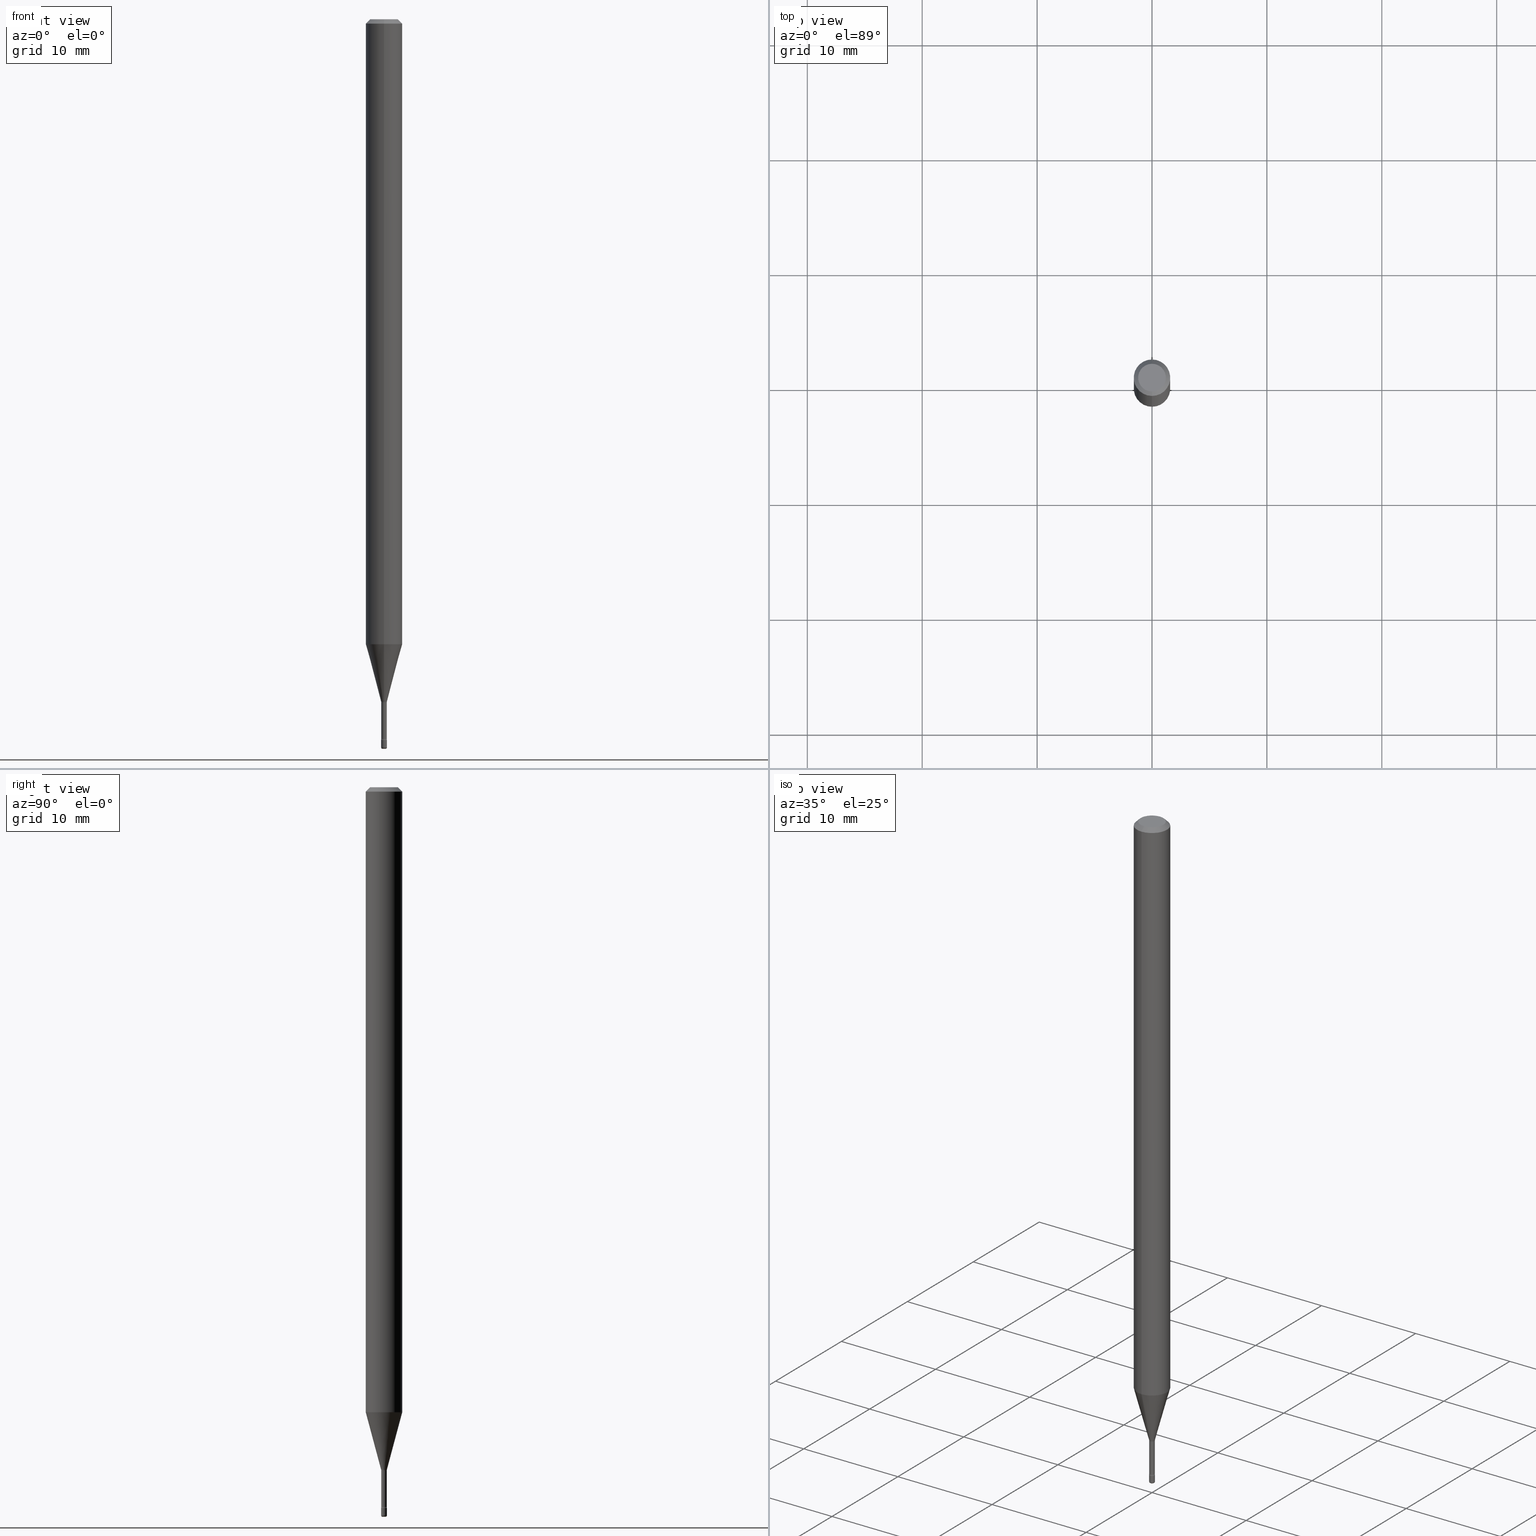
[diagram: canonical four-view strip — front | top / right | iso, engineering-drawing reading convention]
A machine part, canonical four-view strip (front | top / right | iso — engineering-drawing reading convention). The complete STEP part file that produces these views, byte-faithful:
ISO-10303-21;
HEADER;
FILE_DESCRIPTION (( 'STEP AP203' ),
    '1' );
FILE_NAME ('08786.STEP',
    '2024-03-06T20:02:27',
    ( '' ),
    ( '' ),
    'SwSTEP 2.0',
    'SolidWorks 2023',
    '' );
FILE_SCHEMA (( 'CONFIG_CONTROL_DESIGN' ));
ENDSEC;

DATA;
#1 = AXIS2_PLACEMENT_3D ( 'NONE', #392, #439, #50 ) ;
#2 = AXIS2_PLACEMENT_3D ( 'NONE', #240, #27, #195 ) ;
#3 = APPROVAL_PERSON_ORGANIZATION ( #417, #233, #36 ) ;
#4 = DIRECTION ( 'NONE',  ( -1.807323732225328562E-15, -0.2588190451025179639, 0.9659258262890690894 ) ) ;
#5 = EDGE_CURVE ( 'NONE', #423, #71, #418, .T. ) ;
#6 = FACE_OUTER_BOUND ( 'NONE', #510, .T. ) ;
#7 = APPLICATION_PROTOCOL_DEFINITION ( 'international standard', 'config_control_design', 1994, #302 ) ;
#8 = CARTESIAN_POINT ( 'NONE',  ( 0.01000000000000002102, -8.781075567190510050E-15, -2.495000000000000107 ) ) ;
#9 = CIRCLE ( 'NONE', #181, 0.01000000000000000021 ) ;
#10 = AXIS2_PLACEMENT_3D ( 'NONE', #406, #100, #62 ) ;
#11 = EDGE_CURVE ( 'NONE', #360, #296, #400, .T. ) ;
#12 = CARTESIAN_POINT ( 'NONE',  ( 3.668257017501394101E-31, -5.237144951825841500E-17, -0.01500000000000002720 ) ) ;
#13 = CARTESIAN_POINT ( 'NONE',  ( 0.01000000000000000021, -8.693788533719433294E-15, -2.470000000000000195 ) ) ;
#14 = EDGE_CURVE ( 'NONE', #337, #458, #374, .T. ) ;
#15 = DIRECTION ( 'NONE',  ( -2.445504678334258612E-29, 3.491429967883887349E-15, 1.000000000000000000 ) ) ;
#16 = ORIENTED_EDGE ( 'NONE', *, *, #14, .F. ) ;
#17 = CARTESIAN_POINT ( 'NONE',  ( 7.042269065260616487E-17, 0.009911112605655818600, -2.338092501787273125 ) ) ;
#18 = LENGTH_MEASURE_WITH_UNIT ( LENGTH_MEASURE( 0.02539999999999999897 ), #188 );
#19 = VECTOR ( 'NONE', #252, 39.37007874015748143 ) ;
#20 = CARTESIAN_POINT ( 'NONE',  ( 6.040396555485618656E-29, -8.623832020673202836E-15, -2.470000000000000195 ) ) ;
#21 = AXIS2_PLACEMENT_3D ( 'NONE', #548, #327, #366 ) ;
#22 = EDGE_CURVE ( 'NONE', #348, #553, #300, .T. ) ;
#23 = PLANE ( 'NONE',  #2 ) ;
#24 = CARTESIAN_POINT ( 'NONE',  ( 6.982962677692306673E-17, 0.009999999999991375163, -2.470000000000000195 ) ) ;
#25 = PERSON_AND_ORGANIZATION_ROLE ( 'creator' ) ;
#26 = MANIFOLD_SOLID_BREP ( 'Body-Move/Copy2[1]', #312 ) ;
#27 = DIRECTION ( 'NONE',  ( -2.438088387897960049E-29, 3.491481338843145188E-15, 1.000000000000000000 ) ) ;
#28 = CARTESIAN_POINT ( 'NONE',  ( -6.563984917019362207E-17, -0.009400000000008176121, -2.341974787463811047 ) ) ;
#29 = DATE_TIME_ROLE ( 'classification_date' ) ;
#30 = ORIENTED_EDGE ( 'NONE', *, *, #22, .T. ) ;
#31 = FACE_OUTER_BOUND ( 'NONE', #343, .T. ) ;
#32 = APPROVAL_PERSON_ORGANIZATION ( #179, #536, #56 ) ;
#33 = VERTEX_POINT ( 'NONE', #28 ) ;
#34 = DIRECTION ( 'NONE',  ( -1.000000000000000000, 6.982962677686265922E-15, -4.876176775795935793E-29 ) ) ;
#35 = ORIENTED_EDGE ( 'NONE', *, *, #171, .T. ) ;
#36 = APPROVAL_ROLE ( '' ) ;
#37 = ADVANCED_BREP_SHAPE_REPRESENTATION ( '08786', ( #26, #201, #199 ), #445 ) ;
#38 = EDGE_LOOP ( 'NONE', ( #81, #571, #35, #371 ) ) ;
#39 = CARTESIAN_POINT ( 'NONE',  ( 6.040307951277287977E-29, -8.623958906942569995E-15, -2.470000000000000195 ) ) ;
#40 = FACE_OUTER_BOUND ( 'NONE', #207, .T. ) ;
#41 = EDGE_LOOP ( 'NONE', ( #30, #542, #48, #381 ) ) ;
#42 = PLANE ( 'NONE',  #515 ) ;
#43 = AXIS2_PLACEMENT_3D ( 'NONE', #160, #335, #116 ) ;
#44 = ORIENTED_EDGE ( 'NONE', *, *, #476, .T. ) ;
#45 = LOCAL_TIME ( 15, 2, 27.00000000000000000, #120 ) ;
#46 = EDGE_CURVE ( 'NONE', #423, #296, #564, .T. ) ;
#47 = CYLINDRICAL_SURFACE ( 'NONE', #502, 0.009400000000000007308 ) ;
#48 = ORIENTED_EDGE ( 'NONE', *, *, #481, .F. ) ;
#49 = CARTESIAN_POINT ( 'NONE',  ( 6.679101716150976795E-17, 0.009399999999991824617, -2.341974787463811047 ) ) ;
#50 = DIRECTION ( 'NONE',  ( -6.982962677686265133E-15, -1.000000000000000000, 3.491429967883887349E-15 ) ) ;
#51 = CONICAL_SURFACE ( 'NONE', #494, 0.06250000000000000000, 0.7853981633974480570 ) ;
#52 = CIRCLE ( 'NONE', #518, 0.009399999999999998634 ) ;
#53 = CC_DESIGN_APPROVAL ( #260, ( #467 ) ) ;
#54 = DIRECTION ( 'NONE',  ( -2.445504678334258331E-29, 3.491429967883887349E-15, 1.000000000000000000 ) ) ;
#55 = DIRECTION ( 'NONE',  ( -6.982962677686265922E-15, -1.000000000000000000, 0.000000000000000000 ) ) ;
#56 = APPROVAL_ROLE ( '' ) ;
#57 = DIRECTION ( 'NONE',  ( -2.445504678334258331E-29, 3.491429967883887349E-15, 1.000000000000000000 ) ) ;
#58 = ADVANCED_FACE ( 'NONE', ( #31 ), #221, .T. ) ;
#59 = VECTOR ( 'NONE', #379, 39.37007874015748143 ) ;
#60 = CARTESIAN_POINT ( 'NONE',  ( -0.005000000000000000971, -8.666683938578750258E-15, -2.500000000000000000 ) ) ;
#61 = EDGE_CURVE ( 'NONE', #186, #348, #165, .T. ) ;
#62 = DIRECTION ( 'NONE',  ( -6.982962677686265922E-15, -1.000000000000000000, 0.000000000000000000 ) ) ;
#63 = DIRECTION ( 'NONE',  ( 1.000000000000000000, 0.000000000000000000, 0.000000000000000000 ) ) ;
#64 = CARTESIAN_POINT ( 'NONE',  ( 4.440892098501153712E-16, 0.06249999999999995837, -0.01500000000000024578 ) ) ;
#65 = CC_DESIGN_DATE_AND_TIME_ASSIGNMENT ( #464, #250, ( #399 ) ) ;
#66 = AXIS2_PLACEMENT_3D ( 'NONE', #183, #449, #444 ) ;
#67 = DIRECTION ( 'NONE',  ( -6.982962677686265922E-15, -1.000000000000000000, 3.491429967883887349E-15 ) ) ;
#68 = FACE_OUTER_BOUND ( 'NONE', #560, .T. ) ;
#69 = CARTESIAN_POINT ( 'NONE',  ( -4.364351673553916201E-16, -0.06250000000000000000, 6.962877718839889979E-16 ) ) ;
#70 = DIMENSIONAL_EXPONENTS ( 1.000000000000000000, 0.000000000000000000, 0.000000000000000000, 0.000000000000000000, 0.000000000000000000, 0.000000000000000000, 0.000000000000000000 ) ;
#71 = VERTEX_POINT ( 'NONE', #463 ) ;
#72 = CARTESIAN_POINT ( 'NONE',  ( -4.287811248607203282E-16, -0.06250000000000005551, -0.01499999999999981036 ) ) ;
#73 = DIRECTION ( 'NONE',  ( 7.105427357601001859E-15, 1.000000000000000000, 0.000000000000000000 ) ) ;
#74 = ORIENTED_EDGE ( 'NONE', *, *, #453, .T. ) ;
#75 = CC_DESIGN_DATE_AND_TIME_ASSIGNMENT ( #456, #29, ( #80 ) ) ;
#76 = DIRECTION ( 'NONE',  ( 1.000000000000000000, -6.982962677686330608E-15, 0.000000000000000000 ) ) ;
#77 = AXIS2_PLACEMENT_3D ( 'NONE', #554, #157, #196 ) ;
#78 = ORIENTED_EDGE ( 'NONE', *, *, #248, .T. ) ;
#79 = LOCAL_TIME ( 15, 2, 27.00000000000000000, #154 ) ;
#80 = SECURITY_CLASSIFICATION ( '', '', #411 ) ;
#81 = ORIENTED_EDGE ( 'NONE', *, *, #446, .F. ) ;
#82 = CARTESIAN_POINT ( 'NONE',  ( 5.717816151499027115E-29, -8.163286228424696892E-15, -2.338092501787273125 ) ) ;
#83 = VERTEX_POINT ( 'NONE', #341 ) ;
#84 = ORIENTED_EDGE ( 'NONE', *, *, #163, .F. ) ;
#85 = ORIENTED_EDGE ( 'NONE', *, *, #363, .T. ) ;
#86 = EDGE_CURVE ( 'NONE', #317, #556, #9, .T. ) ;
#87 = ORIENTED_EDGE ( 'NONE', *, *, #352, .T. ) ;
#88 = FACE_OUTER_BOUND ( 'NONE', #126, .T. ) ;
#89 = ORIENTED_EDGE ( 'NONE', *, *, #248, .F. ) ;
#90 = DIRECTION ( 'NONE',  ( -2.445504678334258331E-29, 3.491429967883887349E-15, 1.000000000000000000 ) ) ;
#91 = CALENDAR_DATE ( 2024, 6, 3 ) ;
#92 = CARTESIAN_POINT ( 'NONE',  ( 4.364351673553919652E-16, 0.06249999999999995143, -0.01500000000000024578 ) ) ;
#93 = CIRCLE ( 'NONE', #228, 0.005000000000000000971 ) ;
#94 = DIRECTION ( 'NONE',  ( -6.982962677686265922E-15, -1.000000000000000000, 3.483106191921935554E-15 ) ) ;
#95 = FACE_OUTER_BOUND ( 'NONE', #517, .T. ) ;
#96 = EDGE_CURVE ( 'NONE', #83, #33, #516, .T. ) ;
#97 = FACE_OUTER_BOUND ( 'NONE', #143, .T. ) ;
#98 = ORIENTED_EDGE ( 'NONE', *, *, #136, .F. ) ;
#99 = AXIS2_PLACEMENT_3D ( 'NONE', #396, #442, #138 ) ;
#100 = DIRECTION ( 'NONE',  ( -2.445504678334258331E-29, 3.491429967883887349E-15, 1.000000000000000000 ) ) ;
#101 = CARTESIAN_POINT ( 'NONE',  ( 2.572559502513606694E-16, 0.009911112605655818600, -2.338092501787273125 ) ) ;
#102 = ADVANCED_FACE ( 'NONE', ( #40 ), #519, .F. ) ;
#103 = DIRECTION ( 'NONE',  ( -2.445468806185136597E-29, 3.491481338843145583E-15, 1.000000000000000000 ) ) ;
#104 = DIRECTION ( 'NONE',  ( -2.445504678334258331E-29, 3.491429967883887349E-15, 1.000000000000000000 ) ) ;
#105 = FACE_OUTER_BOUND ( 'NONE', #493, .T. ) ;
#106 = ORIENTED_EDGE ( 'NONE', *, *, #488, .T. ) ;
#107 = COORDINATED_UNIVERSAL_TIME_OFFSET ( 5, 0, .BEHIND. ) ;
#108 = DIRECTION ( 'NONE',  ( -2.445468806185136597E-29, 3.491481338843145583E-15, 1.000000000000000000 ) ) ;
#109 = DIRECTION ( 'NONE',  ( -6.982962677686265922E-15, -1.000000000000000000, 0.000000000000000000 ) ) ;
#110 = CALENDAR_DATE ( 2024, 6, 3 ) ;
#111 = ADVANCED_FACE ( 'NONE', ( #125 ), #42, .F. ) ;
#112 = ORIENTED_EDGE ( 'NONE', *, *, #86, .F. ) ;
#113 = DIRECTION ( 'NONE',  ( -2.445504678334258331E-29, 3.491429967883887349E-15, 1.000000000000000000 ) ) ;
#114 = DIRECTION ( 'NONE',  ( -6.982962677686266711E-15, -1.000000000000000000, 3.491481338843145583E-15 ) ) ;
#115 = ORIENTED_EDGE ( 'NONE', *, *, #264, .F. ) ;
#116 = DIRECTION ( 'NONE',  ( -6.982962677686265922E-15, -1.000000000000000000, 3.491429967883884588E-15 ) ) ;
#117 = CIRCLE ( 'NONE', #443, 0.005000000000000042605 ) ;
#118 = CARTESIAN_POINT ( 'NONE',  ( -1.703842893354876449E-16, -0.02440000000000817904, -2.341974787463811047 ) ) ;
#119 = CIRCLE ( 'NONE', #21, 0.01000000000000000021 ) ;
#120 = COORDINATED_UNIVERSAL_TIME_OFFSET ( 5, 0, .BEHIND. ) ;
#121 = ORIENTED_EDGE ( 'NONE', *, *, #405, .T. ) ;
#122 = EDGE_CURVE ( 'NONE', #375, #337, #325, .T. ) ;
#123 = EDGE_LOOP ( 'NONE', ( #508, #299, #217, #87 ) ) ;
#124 = ORIENTED_EDGE ( 'NONE', *, *, #218, .T. ) ;
#125 = FACE_OUTER_BOUND ( 'NONE', #521, .T. ) ;
#126 = EDGE_LOOP ( 'NONE', ( #419, #78, #173, #367 ) ) ;
#127 = DIRECTION ( 'NONE',  ( -2.445504678334258331E-29, 3.491429967883887349E-15, 1.000000000000000000 ) ) ;
#128 = CIRCLE ( 'NONE', #176, 0.005000000000000000971 ) ;
#129 = CIRCLE ( 'NONE', #339, 0.06250000000000000000 ) ;
#130 = DIRECTION ( 'NONE',  ( -6.982962677686265922E-15, -1.000000000000000000, 3.491429967883886954E-15 ) ) ;
#131 = ADVANCED_FACE ( 'NONE', ( #6 ), #549, .T. ) ;
#132 = DIRECTION ( 'NONE',  ( 1.000000000000000000, -6.982962677686330608E-15, 0.000000000000000000 ) ) ;
#133 = LINE ( 'NONE', #308, #486 ) ;
#134 =( CONVERSION_BASED_UNIT ( 'INCH', #18 ) LENGTH_UNIT ( ) NAMED_UNIT ( #70 ) );
#135 = AXIS2_PLACEMENT_3D ( 'NONE', #277, #200, #34 ) ;
#136 = EDGE_CURVE ( 'NONE', #186, #293, #128, .T. ) ;
#137 = CARTESIAN_POINT ( 'NONE',  ( -3.773273898774340269E-16, -0.04750000000000000749, 1.387512961567804299E-16 ) ) ;
#138 = DIRECTION ( 'NONE',  ( 1.000000000000000000, -6.982962677686302998E-15, 4.883557194083125793E-29 ) ) ;
#139 =( NAMED_UNIT ( * ) SI_UNIT ( $, .STERADIAN. ) SOLID_ANGLE_UNIT ( ) );
#140 = CARTESIAN_POINT ( 'NONE',  ( -0.01000000000000000021, -8.596548150102098292E-15, -2.470000000000000195 ) ) ;
#141 = TOROIDAL_SURFACE ( 'NONE', #166, 0.02440000000000000849, 0.01499999999999999424 ) ;
#142 = DIRECTION ( 'NONE',  ( -2.445504678334258331E-29, 3.491429967883887349E-15, 1.000000000000000000 ) ) ;
#143 = EDGE_LOOP ( 'NONE', ( #249, #523, #292, #112 ) ) ;
#144 = LINE ( 'NONE', #17, #268 ) ;
#145 = APPROVAL_DATE_TIME ( #544, #536 ) ;
#146 = CARTESIAN_POINT ( 'NONE',  ( 4.440892098500625669E-16, 0.06250000000000000000, 2.598590258985031286E-16 ) ) ;
#147 = EDGE_LOOP ( 'NONE', ( #98, #251 ) ) ;
#148 = APPROVAL_STATUS ( 'not_yet_approved' ) ;
#149 = AXIS2_PLACEMENT_3D ( 'NONE', #241, #413, #73 ) ;
#150 = AXIS2_PLACEMENT_3D ( 'NONE', #234, #57, #495 ) ;
#151 = DIRECTION ( 'NONE',  ( 1.000000000000000000, -6.982962677686265922E-15, 4.876176775795935793E-29 ) ) ;
#152 = CC_DESIGN_PERSON_AND_ORGANIZATION_ASSIGNMENT ( #193, #238, ( #467 ) ) ;
#153 = ORIENTED_EDGE ( 'NONE', *, *, #481, .T. ) ;
#154 = COORDINATED_UNIVERSAL_TIME_OFFSET ( 5, 0, .BEHIND. ) ;
#155 = VERTEX_POINT ( 'NONE', #49 ) ;
#156 = FACE_OUTER_BOUND ( 'NONE', #550, .T. ) ;
#157 = DIRECTION ( 'NONE',  ( -2.445504678334258331E-29, 3.491429967883887349E-15, 1.000000000000000000 ) ) ;
#158 = ADVANCED_FACE ( 'NONE', ( #567 ), #305, .F. ) ;
#159 = EDGE_LOOP ( 'NONE', ( #74, #162, #472, #16 ) ) ;
#160 = CARTESIAN_POINT ( 'NONE',  ( -1.169113584055446105E-44, 1.669184350826100908E-30, 4.780733988912460139E-16 ) ) ;
#161 = CARTESIAN_POINT ( 'NONE',  ( 6.040307951277287977E-29, -8.623958906942569995E-15, -2.470000000000000195 ) ) ;
#162 = ORIENTED_EDGE ( 'NONE', *, *, #441, .T. ) ;
#163 = EDGE_CURVE ( 'NONE', #293, #553, #117, .T. ) ;
#164 = DIRECTION ( 'NONE',  ( -2.445468806185136597E-29, 3.491481338843145583E-15, 1.000000000000000000 ) ) ;
#165 = CIRCLE ( 'NONE', #478, 0.005000000000000042605 ) ;
#166 = AXIS2_PLACEMENT_3D ( 'NONE', #470, #104, #67 ) ;
#167 = ORIENTED_EDGE ( 'NONE', *, *, #46, .T. ) ;
#168 = ORIENTED_EDGE ( 'NONE', *, *, #11, .T. ) ;
#169 = CARTESIAN_POINT ( 'NONE',  ( -0.005000000000000000104, -8.675718803625644077E-15, -2.495000000000000107 ) ) ;
#170 = ORIENTED_EDGE ( 'NONE', *, *, #382, .T. ) ;
#171 = EDGE_CURVE ( 'NONE', #281, #388, #345, .T. ) ;
#172 = CARTESIAN_POINT ( 'NONE',  ( 5.727226287614814942E-29, -8.176961266471039436E-15, -2.341974787463811047 ) ) ;
#173 = ORIENTED_EDGE ( 'NONE', *, *, #352, .F. ) ;
#174 = DIRECTION ( 'NONE',  ( -6.982962677686265922E-15, -1.000000000000000000, 3.491429967883887349E-15 ) ) ;
#175 = ADVANCED_FACE ( 'NONE', ( #524 ), #522, .T. ) ;
#176 = AXIS2_PLACEMENT_3D ( 'NONE', #261, #347, #132 ) ;
#177 = FACE_OUTER_BOUND ( 'NONE', #460, .T. ) ;
#178 = DIRECTION ( 'NONE',  ( -2.445504678334258331E-29, 3.491429967883887349E-15, 1.000000000000000000 ) ) ;
#179 = PERSON_AND_ORGANIZATION ( #397, #273 ) ;
#180 = EDGE_CURVE ( 'NONE', #566, #155, #390, .T. ) ;
#181 = AXIS2_PLACEMENT_3D ( 'NONE', #161, #336, #514 ) ;
#182 = AXIS2_PLACEMENT_3D ( 'NONE', #533, #315, #270 ) ;
#183 = CARTESIAN_POINT ( 'NONE',  ( 6.030125435836615082E-29, -8.609168014808090444E-15, -2.465800000000000214 ) ) ;
#184 = LINE ( 'NONE', #230, #487 ) ;
#185 = FACE_OUTER_BOUND ( 'NONE', #256, .T. ) ;
#186 = VERTEX_POINT ( 'NONE', #475 ) ;
#187 = CARTESIAN_POINT ( 'NONE',  ( 3.840629472727447874E-16, 0.04750000000000000749, -1.929345507921889422E-16 ) ) ;
#188 =( LENGTH_UNIT ( ) NAMED_UNIT ( * ) SI_UNIT ( $, .METRE. ) );
#189 = CARTESIAN_POINT ( 'NONE',  ( 3.668257017501394101E-31, -5.237144951825841500E-17, -0.01500000000000002720 ) ) ;
#190 = ADVANCED_FACE ( 'NONE', ( #429 ), #51, .T. ) ;
#191 = CARTESIAN_POINT ( 'NONE',  ( 6.892264536879008027E-17, 0.009399999999991406549, -2.465800000000000214 ) ) ;
#192 = ORIENTED_EDGE ( 'NONE', *, *, #298, .T. ) ;
#193 = PERSON_AND_ORGANIZATION ( #397, #273 ) ;
#194 = ADVANCED_FACE ( 'NONE', ( #88 ), #47, .T. ) ;
#195 = DIRECTION ( 'NONE',  ( 1.000000000000000000, -6.982962677686265922E-15, 4.876176775795935793E-29 ) ) ;
#196 = DIRECTION ( 'NONE',  ( -6.982962677686264344E-15, -1.000000000000000000, 0.000000000000000000 ) ) ;
#197 = ORIENTED_EDGE ( 'NONE', *, *, #11, .F. ) ;
#198 = AXIS2_PLACEMENT_3D ( 'NONE', #303, #297, #255 ) ;
#199 = AXIS2_PLACEMENT_3D ( 'NONE', #448, #395, #63 ) ;
#200 = DIRECTION ( 'NONE',  ( 2.438088387897960049E-29, -3.491481338843145188E-15, -1.000000000000000000 ) ) ;
#201 = MANIFOLD_SOLID_BREP ( 'Body-Move/Copy2[2]', #537 ) ;
#202 = DIRECTION ( 'NONE',  ( -2.445504678334258331E-29, 3.491429967883887349E-15, 1.000000000000000000 ) ) ;
#203 = APPROVAL_STATUS ( 'not_yet_approved' ) ;
#204 = ORIENTED_EDGE ( 'NONE', *, *, #356, .T. ) ;
#205 = DIRECTION ( 'NONE',  ( -6.982962677686265922E-15, -1.000000000000000000, 4.370956789862821150E-15 ) ) ;
#206 = DIRECTION ( 'NONE',  ( -2.445504678334258612E-29, 3.491429967883887349E-15, 1.000000000000000000 ) ) ;
#207 = EDGE_LOOP ( 'NONE', ( #197, #259 ) ) ;
#208 = DIRECTION ( 'NONE',  ( 2.445504678334258331E-29, -3.491429967883887349E-15, -1.000000000000000000 ) ) ;
#209 = APPLICATION_CONTEXT ( 'configuration controlled 3d designs of mechanical parts and assemblies' ) ;
#210 = ORIENTED_EDGE ( 'NONE', *, *, #86, .T. ) ;
#211 = ORIENTED_EDGE ( 'NONE', *, *, #14, .T. ) ;
#212 = AXIS2_PLACEMENT_3D ( 'NONE', #410, #202, #285 ) ;
#213 = CIRCLE ( 'NONE', #10, 0.009399999999999998634 ) ;
#214 = CARTESIAN_POINT ( 'NONE',  ( 3.316907271900976589E-16, 0.04750000000000000749, 5.964796231228628526E-17 ) ) ;
#215 = ORIENTED_EDGE ( 'NONE', *, *, #61, .F. ) ;
#216 = DIRECTION ( 'NONE',  ( 2.445504678334258051E-29, -3.491429967883887349E-15, -1.000000000000000000 ) ) ;
#217 = ORIENTED_EDGE ( 'NONE', *, *, #96, .T. ) ;
#218 = EDGE_CURVE ( 'NONE', #281, #286, #246, .T. ) ;
#219 = DIRECTION ( 'NONE',  ( -1.000000000000000000, 7.105427357601060234E-15, 0.000000000000000000 ) ) ;
#220 = CARTESIAN_POINT ( 'NONE',  ( -6.920892941964028521E-17, -0.009911112605672145817, -2.338092501787273125 ) ) ;
#221 = CONICAL_SURFACE ( 'NONE', #77, 0.009911112605663982209, 0.2617993877991500740 ) ;
#222 = AXIS2_PLACEMENT_3D ( 'NONE', #361, #142, #276 ) ;
#223 = APPROVAL_PERSON_ORGANIZATION ( #329, #260, #422 ) ;
#224 = DIRECTION ( 'NONE',  ( -6.982962677686265922E-15, -1.000000000000000000, 3.491429967883884588E-15 ) ) ;
#225 = ADVANCED_FACE ( 'NONE', ( #389 ), #465, .F. ) ;
#226 = CARTESIAN_POINT ( 'NONE',  ( -4.364351673553393088E-16, -0.06250000000000748013, -2.141828102118092936 ) ) ;
#227 = AXIS2_PLACEMENT_3D ( 'NONE', #394, #90, #489 ) ;
#228 = AXIS2_PLACEMENT_3D ( 'NONE', #322, #500, #76 ) ;
#229 = DIRECTION ( 'NONE',  ( -2.445504678334258612E-29, 3.491429967883887349E-15, 1.000000000000000000 ) ) ;
#230 = CARTESIAN_POINT ( 'NONE',  ( -0.01000000000000000021, 7.105427357601002007E-17, -4.918935090254906272E-31 ) ) ;
#231 = EDGE_CURVE ( 'NONE', #83, #337, #482, .T. ) ;
#232 = CARTESIAN_POINT ( 'NONE',  ( 6.101444671431915719E-29, -8.711245940413648329E-15, -2.495000000000000107 ) ) ;
#233 = APPROVAL ( #203, 'UNSPECIFIED' ) ;
#234 = CARTESIAN_POINT ( 'NONE',  ( 6.030036982291310238E-29, -8.609294685319429365E-15, -2.465800000000000214 ) ) ;
#235 = VECTOR ( 'NONE', #206, 39.37007874015748143 ) ;
#236 = VECTOR ( 'NONE', #229, 39.37007874015748143 ) ;
#237 = CARTESIAN_POINT ( 'NONE',  ( 0.01000000000000000021, -6.982962677686265724E-17, 4.876176775795935968E-31 ) ) ;
#238 = PERSON_AND_ORGANIZATION_ROLE ( 'design_supplier' ) ;
#239 = ADVANCED_FACE ( 'NONE', ( #177 ), #353, .T. ) ;
#240 = CARTESIAN_POINT ( 'NONE',  ( 6.040307951277287977E-29, -8.623958906942569995E-15, -2.470000000000000195 ) ) ;
#241 = CARTESIAN_POINT ( 'NONE',  ( 1.733724275255247796E-16, 0.02439999999999140079, -2.465800000000000214 ) ) ;
#242 = FACE_OUTER_BOUND ( 'NONE', #41, .T. ) ;
#243 = ORIENTED_EDGE ( 'NONE', *, *, #484, .T. ) ;
#244 = PERSON_AND_ORGANIZATION ( #397, #273 ) ;
#245 = ORIENTED_EDGE ( 'NONE', *, *, #61, .T. ) ;
#246 = CIRCLE ( 'NONE', #1, 0.04750000000000000749 ) ;
#247 = AXIS2_PLACEMENT_3D ( 'NONE', #376, #164, #151 ) ;
#248 = EDGE_CURVE ( 'NONE', #423, #155, #133, .T. ) ;
#249 = ORIENTED_EDGE ( 'NONE', *, *, #569, .F. ) ;
#250 = DATE_TIME_ROLE ( 'creation_date' ) ;
#251 = ORIENTED_EDGE ( 'NONE', *, *, #488, .F. ) ;
#252 = DIRECTION ( 'NONE',  ( -2.445504678334258612E-29, 3.491429967883887349E-15, 1.000000000000000000 ) ) ;
#253 = DIRECTION ( 'NONE',  ( -6.982962677686265133E-15, -1.000000000000000000, 0.000000000000000000 ) ) ;
#254 = ORIENTED_EDGE ( 'NONE', *, *, #476, .F. ) ;
#255 = DIRECTION ( 'NONE',  ( 7.105427357601000281E-15, 1.000000000000000000, 0.000000000000000000 ) ) ;
#256 = EDGE_LOOP ( 'NONE', ( #84, #106, #245, #466 ) ) ;
#257 = AXIS2_PLACEMENT_3D ( 'NONE', #558, #425, #377 ) ;
#258 = DIRECTION ( 'NONE',  ( 4.937700262164546464E-15, 0.7071067811865449082, -0.7071067811865501263 ) ) ;
#259 = ORIENTED_EDGE ( 'NONE', *, *, #298, .F. ) ;
#260 = APPROVAL ( #148, 'UNSPECIFIED' ) ;
#261 = CARTESIAN_POINT ( 'NONE',  ( 6.113672015462842613E-29, -8.728703347107864943E-15, -2.500000000000000000 ) ) ;
#262 = ADVANCED_FACE ( 'NONE', ( #185 ), #538, .T. ) ;
#263 = DIRECTION ( 'NONE',  ( -6.982962677686264344E-15, -1.000000000000000000, 0.000000000000000000 ) ) ;
#264 = EDGE_CURVE ( 'NONE', #71, #423, #314, .T. ) ;
#265 = AXIS2_PLACEMENT_3D ( 'NONE', #232, #103, #275 ) ;
#266 = DIRECTION ( 'NONE',  ( -2.445504678334258331E-29, 3.491429967883887349E-15, 1.000000000000000000 ) ) ;
#267 = AXIS2_PLACEMENT_3D ( 'NONE', #304, #178, #354 ) ;
#268 = VECTOR ( 'NONE', #403, 39.37007874015748854 ) ;
#269 = FACE_OUTER_BOUND ( 'NONE', #147, .T. ) ;
#270 = DIRECTION ( 'NONE',  ( 1.000000000000000000, -6.982962677686265922E-15, 4.876176775795935793E-29 ) ) ;
#271 = DIRECTION ( 'NONE',  ( -2.445504678334258331E-29, 3.491429967883887349E-15, 1.000000000000000000 ) ) ;
#272 = AXIS2_PLACEMENT_3D ( 'NONE', #530, #572, #130 ) ;
#273 = ORGANIZATION ( 'UNSPECIFIED', 'UNSPECIFIED', '' ) ;
#274 = EDGE_CURVE ( 'NONE', #71, #360, #438, .T. ) ;
#275 = DIRECTION ( 'NONE',  ( 1.000000000000000000, -6.982962677686302998E-15, 4.883557194083125793E-29 ) ) ;
#276 = DIRECTION ( 'NONE',  ( -6.982962677686264344E-15, -1.000000000000000000, 0.000000000000000000 ) ) ;
#277 = CARTESIAN_POINT ( 'NONE',  ( 3.491481338849247767E-17, 0.004999999999991271843, -2.500000000000000000 ) ) ;
#278 = ADVANCED_FACE ( 'NONE', ( #97 ), #359, .T. ) ;
#279 = PERSON_AND_ORGANIZATION_ROLE ( 'creator' ) ;
#280 = AXIS2_PLACEMENT_3D ( 'NONE', #172, #127, #174 ) ;
#281 = VERTEX_POINT ( 'NONE', #187 ) ;
#282 = CALENDAR_DATE ( 2024, 6, 3 ) ;
#283 = ORIENTED_EDGE ( 'NONE', *, *, #171, .F. ) ;
#284 = LINE ( 'NONE', #146, #19 ) ;
#285 = DIRECTION ( 'NONE',  ( -6.982962677686265922E-15, -1.000000000000000000, 0.000000000000000000 ) ) ;
#286 = VERTEX_POINT ( 'NONE', #137 ) ;
#287 = DIRECTION ( 'NONE',  ( -6.982962677686264344E-15, -1.000000000000000000, 0.000000000000000000 ) ) ;
#288 = DIRECTION ( 'NONE',  ( 1.000000000000000000, -6.982962677686078962E-15, 0.000000000000000000 ) ) ;
#289 = ORIENTED_EDGE ( 'NONE', *, *, #453, .F. ) ;
#290 = VECTOR ( 'NONE', #454, 39.37007874015748143 ) ;
#291 = DIRECTION ( 'NONE',  ( -2.445504678334258331E-29, 3.491429967883887349E-15, 1.000000000000000000 ) ) ;
#292 = ORIENTED_EDGE ( 'NONE', *, *, #525, .T. ) ;
#293 = VERTEX_POINT ( 'NONE', #60 ) ;
#294 = ADVANCED_FACE ( 'NONE', ( #491 ), #372, .F. ) ;
#295 = ORIENTED_EDGE ( 'NONE', *, *, #122, .T. ) ;
#296 = VERTEX_POINT ( 'NONE', #539 ) ;
#297 = DIRECTION ( 'NONE',  ( 1.000000000000000000, -7.105427357601001070E-15, 4.926314879429274098E-29 ) ) ;
#298 = EDGE_CURVE ( 'NONE', #296, #360, #391, .T. ) ;
#299 = ORIENTED_EDGE ( 'NONE', *, *, #382, .F. ) ;
#300 = CIRCLE ( 'NONE', #257, 0.01000000000000000021 ) ;
#301 = AXIS2_PLACEMENT_3D ( 'NONE', #424, #208, #331 ) ;
#302 = APPLICATION_CONTEXT ( 'configuration controlled 3d designs of mechanical parts and assemblies' ) ;
#303 = CARTESIAN_POINT ( 'NONE',  ( 1.733724275255216981E-16, 0.02439999999999182406, -2.341974787463811047 ) ) ;
#304 = CARTESIAN_POINT ( 'NONE',  ( -1.169113584055446105E-44, 1.669184350826100908E-30, 4.780733988912460139E-16 ) ) ;
#305 = TOROIDAL_SURFACE ( 'NONE', #349, 0.02440000000000000155, 0.01500000000000002547 ) ;
#306 = CARTESIAN_POINT ( 'NONE',  ( -1.169113584055446105E-44, 1.669184350826100908E-30, 4.780733988912460139E-16 ) ) ;
#307 = AXIS2_PLACEMENT_3D ( 'NONE', #459, #498, #415 ) ;
#308 = CARTESIAN_POINT ( 'NONE',  ( 6.679101716144946940E-17, 0.009400000000000007308, 4.452539571931375103E-16 ) ) ;
#309 = CARTESIAN_POINT ( 'NONE',  ( 5.727310299283631213E-29, -8.176840956979649189E-15, -2.341974787463811047 ) ) ;
#310 = ADVANCED_FACE ( 'NONE', ( #95 ), #340, .T. ) ;
#311 = DIRECTION ( 'NONE',  ( -2.445504678334258331E-29, 3.491429967883887349E-15, 1.000000000000000000 ) ) ;
#312 = CLOSED_SHELL ( 'NONE', ( #457, #310, #529, #414, #262, #278 ) ) ;
#313 = APPLICATION_PROTOCOL_DEFINITION ( 'international standard', 'config_control_design', 1994, #209 ) ;
#314 = CIRCLE ( 'NONE', #66, 0.009400000000000015982 ) ;
#315 = DIRECTION ( 'NONE',  ( -2.445468806185136597E-29, 3.491481338843145583E-15, 1.000000000000000000 ) ) ;
#316 = PERSON_AND_ORGANIZATION_ROLE ( 'design_owner' ) ;
#317 = VERTEX_POINT ( 'NONE', #140 ) ;
#318 = PRODUCT_DEFINITION_SHAPE ( 'NONE', 'NONE',  #399 ) ;
#319 = CC_DESIGN_PERSON_AND_ORGANIZATION_ASSIGNMENT ( #547, #25, ( #399 ) ) ;
#320 = DIRECTION ( 'NONE',  ( -2.445504678334258331E-29, 3.491429967883887349E-15, 1.000000000000000000 ) ) ;
#321 = APPROVAL_DATE_TIME ( #555, #260 ) ;
#322 = CARTESIAN_POINT ( 'NONE',  ( 6.113672015462842613E-29, -8.728703347107864943E-15, -2.500000000000000000 ) ) ;
#323 = ORIENTED_EDGE ( 'NONE', *, *, #231, .T. ) ;
#324 = PERSON_AND_ORGANIZATION ( #397, #273 ) ;
#325 = CIRCLE ( 'NONE', #227, 0.06250000000000000000 ) ;
#326 = AXIS2_PLACEMENT_3D ( 'NONE', #82, #113, #287 ) ;
#327 = DIRECTION ( 'NONE',  ( -2.445468806185136597E-29, 3.491481338843145583E-15, 1.000000000000000000 ) ) ;
#328 = CARTESIAN_POINT ( 'NONE',  ( 6.030125435836615082E-29, -8.609168014808090444E-15, -2.465800000000000214 ) ) ;
#329 = PERSON_AND_ORGANIZATION ( #397, #273 ) ;
#330 = ORIENTED_EDGE ( 'NONE', *, *, #163, .T. ) ;
#331 = DIRECTION ( 'NONE',  ( 6.982962677686265922E-15, 1.000000000000000000, -3.483106191921935554E-15 ) ) ;
#332 = CARTESIAN_POINT ( 'NONE',  ( 0.005000000000000000104, -8.746160753802078401E-15, -2.495000000000000107 ) ) ;
#333 = EDGE_CURVE ( 'NONE', #388, #458, #384, .T. ) ;
#334 = ORIENTED_EDGE ( 'NONE', *, *, #441, .F. ) ;
#335 = DIRECTION ( 'NONE',  ( -2.445504678334258331E-29, 3.491429967883887349E-15, 1.000000000000000000 ) ) ;
#336 = DIRECTION ( 'NONE',  ( -2.445468806185136597E-29, 3.491481338843145583E-15, 1.000000000000000000 ) ) ;
#337 = VERTEX_POINT ( 'NONE', #226 ) ;
#338 = AXIS2_PLACEMENT_3D ( 'NONE', #118, #471, #253 ) ;
#339 = AXIS2_PLACEMENT_3D ( 'NONE', #562, #291, #205 ) ;
#340 = TOROIDAL_SURFACE ( 'NONE', #99, 0.005000000000000000104, 0.005000000000000041737 ) ;
#341 = CARTESIAN_POINT ( 'NONE',  ( -6.920892941964028521E-17, -0.009911112605672145817, -2.338092501787273125 ) ) ;
#342 = SHAPE_DEFINITION_REPRESENTATION ( #318, #37 ) ;
#343 = EDGE_LOOP ( 'NONE', ( #170, #85, #289, #386 ) ) ;
#344 = EDGE_CURVE ( 'NONE', #155, #33, #213, .T. ) ;
#345 = LINE ( 'NONE', #92, #531 ) ;
#346 = ORIENTED_EDGE ( 'NONE', *, *, #5, .T. ) ;
#347 = DIRECTION ( 'NONE',  ( -2.445468806185136597E-29, 3.491481338843145583E-15, 1.000000000000000000 ) ) ;
#348 = VERTEX_POINT ( 'NONE', #8 ) ;
#349 = AXIS2_PLACEMENT_3D ( 'NONE', #351, #54, #527 ) ;
#350 = AXIS2_PLACEMENT_3D ( 'NONE', #20, #271, #55 ) ;
#351 = CARTESIAN_POINT ( 'NONE',  ( 5.727226287614814942E-29, -8.176961266471039436E-15, -2.341974787463811047 ) ) ;
#352 = EDGE_CURVE ( 'NONE', #33, #155, #52, .T. ) ;
#353 = CYLINDRICAL_SURFACE ( 'NONE', #267, 0.06250000000000000000 ) ;
#354 = DIRECTION ( 'NONE',  ( -6.982962677686265922E-15, -1.000000000000000000, 3.491429967883886954E-15 ) ) ;
#355 = APPROVAL_STATUS ( 'not_yet_approved' ) ;
#356 = EDGE_CURVE ( 'NONE', #71, #33, #534, .T. ) ;
#357 = DIRECTION ( 'NONE',  ( -6.982962677686263555E-15, -1.000000000000000000, 0.000000000000000000 ) ) ;
#358 =( NAMED_UNIT ( * ) PLANE_ANGLE_UNIT ( ) SI_UNIT ( $, .RADIAN. ) );
#359 = CYLINDRICAL_SURFACE ( 'NONE', #182, 0.01000000000000000021 ) ;
#360 = VERTEX_POINT ( 'NONE', #404 ) ;
#361 = CARTESIAN_POINT ( 'NONE',  ( 5.717816151499027115E-29, -8.163286228424696892E-15, -2.338092501787273125 ) ) ;
#362 = CIRCLE ( 'NONE', #222, 0.009911112605663982209 ) ;
#363 = EDGE_CURVE ( 'NONE', #566, #375, #144, .T. ) ;
#364 = CARTESIAN_POINT ( 'NONE',  ( -1.703842893354846620E-16, -0.02440000000000861965, -2.465800000000000214 ) ) ;
#365 = CALENDAR_DATE ( 2024, 6, 3 ) ;
#366 = DIRECTION ( 'NONE',  ( 1.000000000000000000, -6.982962677686332186E-15, 0.000000000000000000 ) ) ;
#367 = ORIENTED_EDGE ( 'NONE', *, *, #356, .F. ) ;
#368 = CARTESIAN_POINT ( 'NONE',  ( -0.01000000000000002102, -8.640191666837638248E-15, -2.495000000000000107 ) ) ;
#369 = ORIENTED_EDGE ( 'NONE', *, *, #5, .F. ) ;
#370 = AXIS2_PLACEMENT_3D ( 'NONE', #24, #385, #435 ) ;
#371 = ORIENTED_EDGE ( 'NONE', *, *, #333, .T. ) ;
#372 = TOROIDAL_SURFACE ( 'NONE', #150, 0.02440000000000000849, 0.01499999999999999424 ) ;
#373 = CC_DESIGN_PERSON_AND_ORGANIZATION_ASSIGNMENT ( #324, #505, ( #80 ) ) ;
#374 = LINE ( 'NONE', #69, #235 ) ;
#375 = VERTEX_POINT ( 'NONE', #497 ) ;
#376 = CARTESIAN_POINT ( 'NONE',  ( 0.000000000000000000, 0.000000000000000000, 0.000000000000000000 ) ) ;
#377 = DIRECTION ( 'NONE',  ( 1.000000000000000000, -6.982962677686332186E-15, 0.000000000000000000 ) ) ;
#378 = EDGE_LOOP ( 'NONE', ( #89, #346, #204, #511 ) ) ;
#379 = DIRECTION ( 'NONE',  ( -4.851104656540962697E-15, -0.7071067811865497932, -0.7071067811865452413 ) ) ;
#380 = ORIENTED_EDGE ( 'NONE', *, *, #363, .F. ) ;
#381 = ORIENTED_EDGE ( 'NONE', *, *, #525, .F. ) ;
#382 = EDGE_CURVE ( 'NONE', #83, #566, #362, .T. ) ;
#383 = VECTOR ( 'NONE', #4, 39.37007874015748854 ) ;
#384 = CIRCLE ( 'NONE', #496, 0.06250000000000000000 ) ;
#385 = DIRECTION ( 'NONE',  ( -2.445504678334258051E-29, 3.491429967883887349E-15, 1.000000000000000000 ) ) ;
#386 = ORIENTED_EDGE ( 'NONE', *, *, #231, .F. ) ;
#387 = CARTESIAN_POINT ( 'NONE',  ( 3.668257017501394101E-31, -5.237144951825841500E-17, -0.01500000000000002720 ) ) ;
#388 = VERTEX_POINT ( 'NONE', #64 ) ;
#389 = FACE_OUTER_BOUND ( 'NONE', #461, .T. ) ;
#390 = CIRCLE ( 'NONE', #198, 0.01500000000000002720 ) ;
#391 = CIRCLE ( 'NONE', #350, 0.01000000000000000021 ) ;
#392 = CARTESIAN_POINT ( 'NONE',  ( 6.626985086939011636E-46, -9.456396040667753118E-32, -2.709162731770425619E-17 ) ) ;
#393 = DATE_AND_TIME ( #91, #468 ) ;
#394 = CARTESIAN_POINT ( 'NONE',  ( 5.237850643917582024E-29, -7.478042821790981492E-15, -2.141828102118093380 ) ) ;
#395 = DIRECTION ( 'NONE',  ( 0.000000000000000000, 0.000000000000000000, 1.000000000000000000 ) ) ;
#396 = CARTESIAN_POINT ( 'NONE',  ( 6.101444671431915719E-29, -8.711245940413648329E-15, -2.495000000000000107 ) ) ;
#397 = PERSON ( 'UNSPECIFIED', 'UNSPECIFIED', 'UNSPECIFIED', ('UNSPECIFIED'), ('UNSPECIFIED'), ('UNSPECIFIED') ) ;
#398 = COORDINATED_UNIVERSAL_TIME_OFFSET ( 5, 0, .BEHIND. ) ;
#399 = PRODUCT_DEFINITION ( 'UNKNOWN', '', #467, #559 ) ;
#400 = CIRCLE ( 'NONE', #212, 0.01000000000000000021 ) ;
#401 = DIRECTION ( 'NONE',  ( -6.982962677686265922E-15, -1.000000000000000000, 0.000000000000000000 ) ) ;
#402 = CIRCLE ( 'NONE', #420, 0.01000000000000000021 ) ;
#403 = DIRECTION ( 'NONE',  ( 1.839019923739598738E-15, 0.2588190451025247363, 0.9659258262890673130 ) ) ;
#404 = CARTESIAN_POINT ( 'NONE',  ( -6.982962677680222310E-17, -0.01000000000000861831, -2.470000000000000195 ) ) ;
#405 = EDGE_CURVE ( 'NONE', #458, #388, #565, .T. ) ;
#406 = CARTESIAN_POINT ( 'NONE',  ( 5.727310299283631213E-29, -8.176840956979649189E-15, -2.341974787463811047 ) ) ;
#407 = AXIS2_PLACEMENT_3D ( 'NONE', #433, #266, #263 ) ;
#408 = AXIS2_PLACEMENT_3D ( 'NONE', #189, #320, #94 ) ;
#409 = CC_DESIGN_SECURITY_CLASSIFICATION ( #80, ( #467 ) ) ;
#410 = CARTESIAN_POINT ( 'NONE',  ( 6.040396555485618656E-29, -8.623832020673202836E-15, -2.470000000000000195 ) ) ;
#411 = SECURITY_CLASSIFICATION_LEVEL ( 'unclassified' ) ;
#412 = CYLINDRICAL_SURFACE ( 'NONE', #43, 0.009400000000000007308 ) ;
#413 = DIRECTION ( 'NONE',  ( 1.000000000000000000, -7.105427357601001070E-15, 4.926314879429274098E-29 ) ) ;
#414 = ADVANCED_FACE ( 'NONE', ( #269 ), #440, .T. ) ;
#415 = DIRECTION ( 'NONE',  ( -6.982962677686265133E-15, -1.000000000000000000, 3.491429967883887349E-15 ) ) ;
#416 = ORIENTED_EDGE ( 'NONE', *, *, #122, .F. ) ;
#417 = PERSON_AND_ORGANIZATION ( #397, #273 ) ;
#418 = CIRCLE ( 'NONE', #431, 0.009400000000000015982 ) ;
#419 = ORIENTED_EDGE ( 'NONE', *, *, #264, .T. ) ;
#420 = AXIS2_PLACEMENT_3D ( 'NONE', #39, #108, #462 ) ;
#421 = DIRECTION ( 'NONE',  ( -2.445504678334258331E-29, 3.491429967883887349E-15, 1.000000000000000000 ) ) ;
#422 = APPROVAL_ROLE ( '' ) ;
#423 = VERTEX_POINT ( 'NONE', #191 ) ;
#424 = CARTESIAN_POINT ( 'NONE',  ( 3.668257017501394101E-31, -5.237144951825841500E-17, -0.01500000000000002720 ) ) ;
#425 = DIRECTION ( 'NONE',  ( -2.445468806185136597E-29, 3.491481338843145583E-15, 1.000000000000000000 ) ) ;
#426 = ADVANCED_FACE ( 'NONE', ( #156 ), #540, .T. ) ;
#427 = APPROVAL_DATE_TIME ( #393, #233 ) ;
#428 = ORIENTED_EDGE ( 'NONE', *, *, #180, .T. ) ;
#429 = FACE_OUTER_BOUND ( 'NONE', #38, .T. ) ;
#430 = EDGE_LOOP ( 'NONE', ( #473, #115, #563, #168 ) ) ;
#431 = AXIS2_PLACEMENT_3D ( 'NONE', #328, #421, #109 ) ;
#432 = LOCAL_TIME ( 15, 2, 27.00000000000000000, #398 ) ;
#433 = CARTESIAN_POINT ( 'NONE',  ( 5.717816151499027115E-29, -8.163286228424696892E-15, -2.338092501787273125 ) ) ;
#434 = ORIENTED_EDGE ( 'NONE', *, *, #96, .F. ) ;
#435 = DIRECTION ( 'NONE',  ( -6.982962677686265922E-15, -1.000000000000000000, 3.491429967883887349E-15 ) ) ;
#436 = EDGE_CURVE ( 'NONE', #553, #348, #119, .T. ) ;
#437 = DIRECTION ( 'NONE',  ( 2.445504678334258331E-29, -3.491429967883887349E-15, -1.000000000000000000 ) ) ;
#438 = CIRCLE ( 'NONE', #551, 0.01499999999999999771 ) ;
#439 = DIRECTION ( 'NONE',  ( -2.445504678334258331E-29, 3.491429967883887349E-15, 1.000000000000000000 ) ) ;
#440 = PLANE ( 'NONE',  #135 ) ;
#441 = EDGE_CURVE ( 'NONE', #375, #388, #284, .T. ) ;
#442 = DIRECTION ( 'NONE',  ( -2.445468806185136597E-29, 3.491481338843145583E-15, 1.000000000000000000 ) ) ;
#443 = AXIS2_PLACEMENT_3D ( 'NONE', #169, #485, #219 ) ;
#444 = DIRECTION ( 'NONE',  ( -6.982962677686265922E-15, -1.000000000000000000, 0.000000000000000000 ) ) ;
#445 =( GEOMETRIC_REPRESENTATION_CONTEXT ( 3 ) GLOBAL_UNCERTAINTY_ASSIGNED_CONTEXT ( ( #483 ) ) GLOBAL_UNIT_ASSIGNED_CONTEXT ( ( #134, #358, #139 ) ) REPRESENTATION_CONTEXT ( 'NONE', 'WORKASPACE' ) );
#446 = EDGE_CURVE ( 'NONE', #286, #458, #513, .T. ) ;
#447 = DIRECTION ( 'NONE',  ( -6.982962677686265922E-15, -1.000000000000000000, 3.483106191921935554E-15 ) ) ;
#448 = CARTESIAN_POINT ( 'NONE',  ( 0.000000000000000000, 0.000000000000000000, 0.000000000000000000 ) ) ;
#449 = DIRECTION ( 'NONE',  ( -2.445504678334258331E-29, 3.491429967883887349E-15, 1.000000000000000000 ) ) ;
#450 = DIRECTION ( 'NONE',  ( -2.445468806185136877E-29, 3.491481338843145188E-15, 1.000000000000000000 ) ) ;
#451 = LINE ( 'NONE', #237, #290 ) ;
#452 = CIRCLE ( 'NONE', #307, 0.04750000000000000749 ) ;
#453 = EDGE_CURVE ( 'NONE', #337, #375, #129, .T. ) ;
#454 = DIRECTION ( 'NONE',  ( -2.445468806185136877E-29, 3.491481338843145188E-15, 1.000000000000000000 ) ) ;
#455 = ORIENTED_EDGE ( 'NONE', *, *, #484, .F. ) ;
#456 = DATE_AND_TIME ( #282, #552 ) ;
#457 = ADVANCED_FACE ( 'NONE', ( #242 ), #509, .T. ) ;
#458 = VERTEX_POINT ( 'NONE', #506 ) ;
#459 = CARTESIAN_POINT ( 'NONE',  ( 6.626985086939011636E-46, -9.456396040667753118E-32, -2.709162731770425619E-17 ) ) ;
#460 = EDGE_LOOP ( 'NONE', ( #334, #295, #211, #477 ) ) ;
#461 = EDGE_LOOP ( 'NONE', ( #254, #428, #503, #434 ) ) ;
#462 = DIRECTION ( 'NONE',  ( 1.000000000000000000, -6.982962677686235945E-15, 0.000000000000000000 ) ) ;
#463 = CARTESIAN_POINT ( 'NONE',  ( -6.563984917019071315E-17, -0.009400000000008625414, -2.465800000000000214 ) ) ;
#464 = DATE_AND_TIME ( #499, #79 ) ;
#465 = TOROIDAL_SURFACE ( 'NONE', #280, 0.02440000000000000155, 0.01500000000000002547 ) ;
#466 = ORIENTED_EDGE ( 'NONE', *, *, #436, .F. ) ;
#467 = PRODUCT_DEFINITION_FORMATION_WITH_SPECIFIED_SOURCE ( 'ANY', '', #526, .NOT_KNOWN. ) ;
#468 = LOCAL_TIME ( 15, 2, 27.00000000000000000, #520 ) ;
#469 = CC_DESIGN_PERSON_AND_ORGANIZATION_ASSIGNMENT ( #541, #316, ( #526 ) ) ;
#470 = CARTESIAN_POINT ( 'NONE',  ( 6.030036982291310238E-29, -8.609294685319429365E-15, -2.465800000000000214 ) ) ;
#471 = DIRECTION ( 'NONE',  ( -1.000000000000000000, 6.982962677686265922E-15, -4.883557194083112340E-29 ) ) ;
#472 = ORIENTED_EDGE ( 'NONE', *, *, #405, .F. ) ;
#473 = ORIENTED_EDGE ( 'NONE', *, *, #46, .F. ) ;
#474 = ORIENTED_EDGE ( 'NONE', *, *, #22, .F. ) ;
#475 = CARTESIAN_POINT ( 'NONE',  ( 0.005000000000000000971, -8.763618160496296592E-15, -2.500000000000000000 ) ) ;
#476 = EDGE_CURVE ( 'NONE', #566, #83, #532, .T. ) ;
#477 = ORIENTED_EDGE ( 'NONE', *, *, #333, .F. ) ;
#478 = AXIS2_PLACEMENT_3D ( 'NONE', #332, #114, #288 ) ;
#479 = CC_DESIGN_APPROVAL ( #233, ( #80 ) ) ;
#480 = DIRECTION ( 'NONE',  ( 6.982962677686265922E-15, 1.000000000000000000, -3.491429967883887349E-15 ) ) ;
#481 = EDGE_CURVE ( 'NONE', #556, #317, #402, .T. ) ;
#482 = LINE ( 'NONE', #220, #383 ) ;
#483 = UNCERTAINTY_MEASURE_WITH_UNIT (LENGTH_MEASURE( 1.000000000000000082E-05 ), #134, 'distance_accuracy_value', 'NONE');
#484 = EDGE_CURVE ( 'NONE', #286, #281, #452, .T. ) ;
#485 = DIRECTION ( 'NONE',  ( 7.105427357601001859E-15, 1.000000000000000000, -3.491481338843145583E-15 ) ) ;
#486 = VECTOR ( 'NONE', #15, 39.37007874015748143 ) ;
#487 = VECTOR ( 'NONE', #450, 39.37007874015748143 ) ;
#488 = EDGE_CURVE ( 'NONE', #293, #186, #93, .T. ) ;
#489 = DIRECTION ( 'NONE',  ( -6.982962677686265922E-15, -1.000000000000000000, 4.370956789862821150E-15 ) ) ;
#490 = MECHANICAL_CONTEXT ( 'NONE', #209, 'mechanical' ) ;
#491 = FACE_OUTER_BOUND ( 'NONE', #430, .T. ) ;
#492 = DIRECTION ( 'NONE',  ( -2.445504678334258331E-29, 3.491429967883887349E-15, 1.000000000000000000 ) ) ;
#493 = EDGE_LOOP ( 'NONE', ( #369, #167, #192, #568 ) ) ;
#494 = AXIS2_PLACEMENT_3D ( 'NONE', #387, #437, #528 ) ;
#495 = DIRECTION ( 'NONE',  ( -6.982962677686265922E-15, -1.000000000000000000, 3.491429967883887349E-15 ) ) ;
#496 = AXIS2_PLACEMENT_3D ( 'NONE', #12, #311, #447 ) ;
#497 = CARTESIAN_POINT ( 'NONE',  ( 4.440892098501147796E-16, 0.06249999999999251293, -2.141828102118093380 ) ) ;
#498 = DIRECTION ( 'NONE',  ( -2.445504678334258331E-29, 3.491429967883887349E-15, 1.000000000000000000 ) ) ;
#499 = CALENDAR_DATE ( 2024, 6, 3 ) ;
#500 = DIRECTION ( 'NONE',  ( -2.445468806185136597E-29, 3.491481338843145583E-15, 1.000000000000000000 ) ) ;
#501 = ADVANCED_FACE ( 'NONE', ( #557 ), #412, .T. ) ;
#502 = AXIS2_PLACEMENT_3D ( 'NONE', #306, #570, #224 ) ;
#503 = ORIENTED_EDGE ( 'NONE', *, *, #344, .T. ) ;
#504 = CC_DESIGN_APPROVAL ( #536, ( #399 ) ) ;
#505 = PERSON_AND_ORGANIZATION_ROLE ( 'classification_officer' ) ;
#506 = CARTESIAN_POINT ( 'NONE',  ( -4.364351673553912750E-16, -0.06250000000000005551, -0.01499999999999981036 ) ) ;
#507 = ORIENTED_EDGE ( 'NONE', *, *, #446, .T. ) ;
#508 = ORIENTED_EDGE ( 'NONE', *, *, #180, .F. ) ;
#509 = CYLINDRICAL_SURFACE ( 'NONE', #247, 0.01000000000000000021 ) ;
#510 = EDGE_LOOP ( 'NONE', ( #380, #44, #323, #416 ) ) ;
#511 = ORIENTED_EDGE ( 'NONE', *, *, #344, .F. ) ;
#512 = ADVANCED_FACE ( 'NONE', ( #105 ), #141, .F. ) ;
#513 = LINE ( 'NONE', #72, #59 ) ;
#514 = DIRECTION ( 'NONE',  ( 1.000000000000000000, -6.982962677686235945E-15, 0.000000000000000000 ) ) ;
#515 = AXIS2_PLACEMENT_3D ( 'NONE', #214, #216, #480 ) ;
#516 = CIRCLE ( 'NONE', #338, 0.01500000000000002720 ) ;
#517 = EDGE_LOOP ( 'NONE', ( #546, #330, #474, #215 ) ) ;
#518 = AXIS2_PLACEMENT_3D ( 'NONE', #309, #492, #401 ) ;
#519 = PLANE ( 'NONE',  #370 ) ;
#520 = COORDINATED_UNIVERSAL_TIME_OFFSET ( 5, 0, .BEHIND. ) ;
#521 = EDGE_LOOP ( 'NONE', ( #124, #243 ) ) ;
#522 = CYLINDRICAL_SURFACE ( 'NONE', #272, 0.06250000000000000000 ) ;
#523 = ORIENTED_EDGE ( 'NONE', *, *, #436, .T. ) ;
#524 = FACE_OUTER_BOUND ( 'NONE', #159, .T. ) ;
#525 = EDGE_CURVE ( 'NONE', #348, #556, #451, .T. ) ;
#526 = PRODUCT ( '08786', '08786', '', ( #490 ) ) ;
#527 = DIRECTION ( 'NONE',  ( -6.982962677686265922E-15, -1.000000000000000000, 3.491429967883887349E-15 ) ) ;
#528 = DIRECTION ( 'NONE',  ( 6.982962677686265922E-15, 1.000000000000000000, -3.483106191921935554E-15 ) ) ;
#529 = ADVANCED_FACE ( 'NONE', ( #68 ), #23, .T. ) ;
#530 = CARTESIAN_POINT ( 'NONE',  ( -1.169113584055446105E-44, 1.669184350826100908E-30, 4.780733988912460139E-16 ) ) ;
#531 = VECTOR ( 'NONE', #258, 39.37007874015748143 ) ;
#532 = CIRCLE ( 'NONE', #326, 0.009911112605663982209 ) ;
#533 = CARTESIAN_POINT ( 'NONE',  ( 0.000000000000000000, 0.000000000000000000, 0.000000000000000000 ) ) ;
#534 = LINE ( 'NONE', #543, #236 ) ;
#535 = DIRECTION ( 'NONE',  ( -1.000000000000000000, 6.982962677686265922E-15, -4.883557194083112340E-29 ) ) ;
#536 = APPROVAL ( #355, 'UNSPECIFIED' ) ;
#537 = CLOSED_SHELL ( 'NONE', ( #225, #194, #512, #426, #175, #58, #131, #239, #190, #111, #102, #294, #501, #158 ) ) ;
#538 = TOROIDAL_SURFACE ( 'NONE', #265, 0.005000000000000000104, 0.005000000000000041737 ) ;
#539 = CARTESIAN_POINT ( 'NONE',  ( 7.105427357607038025E-17, 0.009999999999991373428, -2.470000000000000195 ) ) ;
#540 = CONICAL_SURFACE ( 'NONE', #301, 0.06250000000000000000, 0.7853981633974480570 ) ;
#541 = PERSON_AND_ORGANIZATION ( #397, #273 ) ;
#542 = ORIENTED_EDGE ( 'NONE', *, *, #569, .T. ) ;
#543 = CARTESIAN_POINT ( 'NONE',  ( -6.563984917025095007E-17, -0.009400000000000007308, 5.108928405893546161E-16 ) ) ;
#544 = DATE_AND_TIME ( #365, #432 ) ;
#545 = CC_DESIGN_PERSON_AND_ORGANIZATION_ASSIGNMENT ( #244, #279, ( #467 ) ) ;
#546 = ORIENTED_EDGE ( 'NONE', *, *, #136, .T. ) ;
#547 = PERSON_AND_ORGANIZATION ( #397, #273 ) ;
#548 = CARTESIAN_POINT ( 'NONE',  ( 6.101444671431915719E-29, -8.711245940413648329E-15, -2.495000000000000107 ) ) ;
#549 = CONICAL_SURFACE ( 'NONE', #407, 0.009911112605663982209, 0.2617993877991500740 ) ;
#550 = EDGE_LOOP ( 'NONE', ( #455, #507, #121, #283 ) ) ;
#551 = AXIS2_PLACEMENT_3D ( 'NONE', #364, #535, #357 ) ;
#552 = LOCAL_TIME ( 15, 2, 27.00000000000000000, #107 ) ;
#553 = VERTEX_POINT ( 'NONE', #368 ) ;
#554 = CARTESIAN_POINT ( 'NONE',  ( 5.717816151499027115E-29, -8.163286228424696892E-15, -2.338092501787273125 ) ) ;
#555 = DATE_AND_TIME ( #110, #45 ) ;
#556 = VERTEX_POINT ( 'NONE', #13 ) ;
#557 = FACE_OUTER_BOUND ( 'NONE', #378, .T. ) ;
#558 = CARTESIAN_POINT ( 'NONE',  ( 6.101444671431915719E-29, -8.711245940413648329E-15, -2.495000000000000107 ) ) ;
#559 = DESIGN_CONTEXT ( 'detailed design', #302, 'design' ) ;
#560 = EDGE_LOOP ( 'NONE', ( #153, #210 ) ) ;
#561 = PRODUCT_RELATED_PRODUCT_CATEGORY ( 'detail', '', ( #526 ) ) ;
#562 = CARTESIAN_POINT ( 'NONE',  ( 5.237850643917582024E-29, -7.478042821790981492E-15, -2.141828102118093380 ) ) ;
#563 = ORIENTED_EDGE ( 'NONE', *, *, #274, .T. ) ;
#564 = CIRCLE ( 'NONE', #149, 0.01499999999999998904 ) ;
#565 = CIRCLE ( 'NONE', #408, 0.06250000000000000000 ) ;
#566 = VERTEX_POINT ( 'NONE', #101 ) ;
#567 = FACE_OUTER_BOUND ( 'NONE', #123, .T. ) ;
#568 = ORIENTED_EDGE ( 'NONE', *, *, #274, .F. ) ;
#569 = EDGE_CURVE ( 'NONE', #553, #317, #184, .T. ) ;
#570 = DIRECTION ( 'NONE',  ( -2.445504678334258331E-29, 3.491429967883887349E-15, 1.000000000000000000 ) ) ;
#571 = ORIENTED_EDGE ( 'NONE', *, *, #218, .F. ) ;
#572 = DIRECTION ( 'NONE',  ( -2.445504678334258331E-29, 3.491429967883887349E-15, 1.000000000000000000 ) ) ;
ENDSEC;
END-ISO-10303-21;
